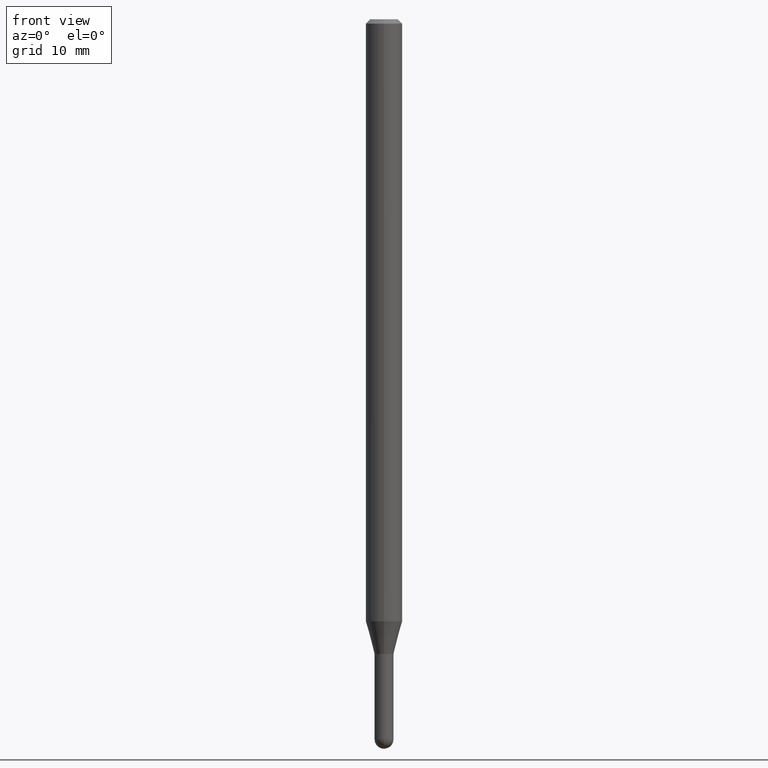
[diagram: clean part render]
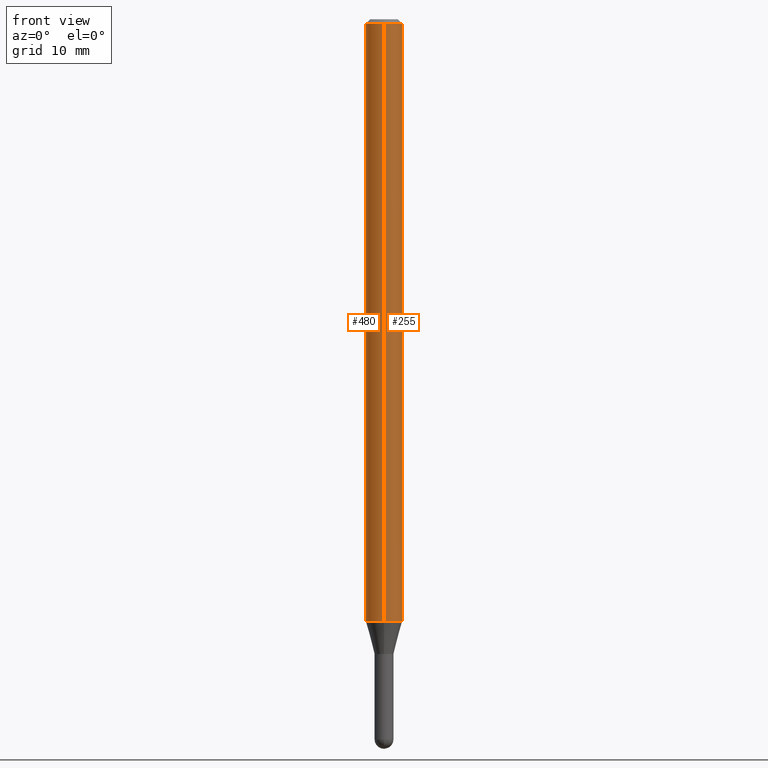
[diagram: same view with one multi-face feature highlighted, each face labeled with its STEP entity id]
A machine part, front view. The highlighted faces form ONE feature: a constant-radius fillet chain: 2 tangent blend faces with common blend radius 1.5875 mm. The faces share edges in the B-rep.
Their STEP definitions:
[1] entity #255 (Cylinder):
#9 = LINE ( 'NONE', #167, #502 ) ;
#13 = DIRECTION ( 'NONE',  ( -2.445428605324870207E-29, 3.491538908763138017E-15, 1.000000000000000000 ) ) ;
#27 = DIRECTION ( 'NONE',  ( -2.445428605324870207E-29, 3.491538908763138017E-15, 1.000000000000000000 ) ) ;
#48 = EDGE_CURVE ( 'NONE', #452, #416, #9, .T. ) ;
#50 = EDGE_LOOP ( 'NONE', ( #472, #399, #377, #481 ) ) ;
#65 = CARTESIAN_POINT ( 'NONE',  ( 5.045013302540962322E-29, -7.203179108436612378E-15, -2.063038475772938085 ) ) ;
#70 = CARTESIAN_POINT ( 'NONE',  ( -4.364351673553413302E-16, -0.06250000000000723033, -2.063038475772938085 ) ) ;
#77 = CARTESIAN_POINT ( 'NONE',  ( -4.364351673553912750E-16, -0.06250000000000005551, -0.01499999999999984852 ) ) ;
#98 = VECTOR ( 'NONE', #106, 39.37007874015748143 ) ;
#106 = DIRECTION ( 'NONE',  ( -2.445428605324870207E-29, 3.491538908763138017E-15, 1.000000000000000000 ) ) ;
#111 = LINE ( 'NONE', #195, #98 ) ;
#122 = AXIS2_PLACEMENT_3D ( 'NONE', #65, #27, #308 ) ;
#132 = CARTESIAN_POINT ( 'NONE',  ( 3.668142907987321705E-31, -5.237308363144729655E-17, -0.01500000000000006710 ) ) ;
#160 = CIRCLE ( 'NONE', #122, 0.06250000000000000000 ) ;
#167 = CARTESIAN_POINT ( 'NONE',  ( 4.440892098500625669E-16, 0.06250000000000000000, -2.182211817976961260E-16 ) ) ;
#173 = DIRECTION ( 'NONE',  ( -2.445428605324870207E-29, 3.491538908763138017E-15, 1.000000000000000000 ) ) ;
#175 = VERTEX_POINT ( 'NONE', #77 ) ;
#195 = CARTESIAN_POINT ( 'NONE',  ( -4.364351673553916201E-16, -0.06250000000000000000, 2.182211817976961260E-16 ) ) ;
#204 = EDGE_CURVE ( 'NONE', #298, #452, #160, .T. ) ;
#232 = CARTESIAN_POINT ( 'NONE',  ( 4.440892098501133991E-16, 0.06249999999999995143, -0.01500000000000028394 ) ) ;
#251 = EDGE_CURVE ( 'NONE', #175, #416, #427, .T. ) ;
#255 = ADVANCED_FACE ( 'NONE', ( #417 ), #354, .T. ) ;
#274 = AXIS2_PLACEMENT_3D ( 'NONE', #465, #420, #430 ) ;
#285 = DIRECTION ( 'NONE',  ( -6.982962677686265922E-15, -1.000000000000000000, 3.483106191921935554E-15 ) ) ;
#298 = VERTEX_POINT ( 'NONE', #70 ) ;
#308 = DIRECTION ( 'NONE',  ( -6.982962677686265922E-15, -1.000000000000000000, 4.370956789862821150E-15 ) ) ;
#317 = EDGE_CURVE ( 'NONE', #298, #175, #111, .T. ) ;
#343 = CARTESIAN_POINT ( 'NONE',  ( 4.440892098501128074E-16, 0.06249999999999276967, -2.063038475772938529 ) ) ;
#354 = CYLINDRICAL_SURFACE ( 'NONE', #274, 0.06250000000000000000 ) ;
#367 = AXIS2_PLACEMENT_3D ( 'NONE', #132, #13, #285 ) ;
#377 = ORIENTED_EDGE ( 'NONE', *, *, #251, .F. ) ;
#399 = ORIENTED_EDGE ( 'NONE', *, *, #48, .T. ) ;
#416 = VERTEX_POINT ( 'NONE', #232 ) ;
#417 = FACE_OUTER_BOUND ( 'NONE', #50, .T. ) ;
#420 = DIRECTION ( 'NONE',  ( -2.445428605324870207E-29, 3.491538908763138017E-15, 1.000000000000000000 ) ) ;
#427 = CIRCLE ( 'NONE', #367, 0.06250000000000000000 ) ;
#430 = DIRECTION ( 'NONE',  ( -6.982962677686265922E-15, -1.000000000000000000, 3.491538908763138017E-15 ) ) ;
#452 = VERTEX_POINT ( 'NONE', #343 ) ;
#465 = CARTESIAN_POINT ( 'NONE',  ( 0.000000000000000000, 0.000000000000000000, 0.000000000000000000 ) ) ;
#472 = ORIENTED_EDGE ( 'NONE', *, *, #204, .T. ) ;
#481 = ORIENTED_EDGE ( 'NONE', *, *, #317, .F. ) ;
#502 = VECTOR ( 'NONE', #173, 39.37007874015748143 ) ;
[2] entity #480 (Cylinder):
#9 = LINE ( 'NONE', #167, #502 ) ;
#19 = AXIS2_PLACEMENT_3D ( 'NONE', #36, #355, #155 ) ;
#36 = CARTESIAN_POINT ( 'NONE',  ( 5.045013302540962322E-29, -7.203179108436612378E-15, -2.063038475772938085 ) ) ;
#48 = EDGE_CURVE ( 'NONE', #452, #416, #9, .T. ) ;
#51 = FACE_OUTER_BOUND ( 'NONE', #215, .T. ) ;
#70 = CARTESIAN_POINT ( 'NONE',  ( -4.364351673553413302E-16, -0.06250000000000723033, -2.063038475772938085 ) ) ;
#77 = CARTESIAN_POINT ( 'NONE',  ( -4.364351673553912750E-16, -0.06250000000000005551, -0.01499999999999984852 ) ) ;
#90 = CARTESIAN_POINT ( 'NONE',  ( 0.000000000000000000, 0.000000000000000000, 0.000000000000000000 ) ) ;
#98 = VECTOR ( 'NONE', #106, 39.37007874015748143 ) ;
#102 = ORIENTED_EDGE ( 'NONE', *, *, #176, .T. ) ;
#104 = CARTESIAN_POINT ( 'NONE',  ( 3.668142907987321705E-31, -5.237308363144729655E-17, -0.01500000000000006710 ) ) ;
#106 = DIRECTION ( 'NONE',  ( -2.445428605324870207E-29, 3.491538908763138017E-15, 1.000000000000000000 ) ) ;
#111 = LINE ( 'NONE', #195, #98 ) ;
#116 = AXIS2_PLACEMENT_3D ( 'NONE', #90, #376, #138 ) ;
#136 = DIRECTION ( 'NONE',  ( -6.982962677686265922E-15, -1.000000000000000000, 3.483106191921935554E-15 ) ) ;
#138 = DIRECTION ( 'NONE',  ( -6.982962677686265922E-15, -1.000000000000000000, 3.491538908763138017E-15 ) ) ;
#155 = DIRECTION ( 'NONE',  ( -6.982962677686265922E-15, -1.000000000000000000, 4.370956789862821150E-15 ) ) ;
#167 = CARTESIAN_POINT ( 'NONE',  ( 4.440892098500625669E-16, 0.06250000000000000000, -2.182211817976961260E-16 ) ) ;
#173 = DIRECTION ( 'NONE',  ( -2.445428605324870207E-29, 3.491538908763138017E-15, 1.000000000000000000 ) ) ;
#175 = VERTEX_POINT ( 'NONE', #77 ) ;
#176 = EDGE_CURVE ( 'NONE', #452, #298, #405, .T. ) ;
#195 = CARTESIAN_POINT ( 'NONE',  ( -4.364351673553916201E-16, -0.06250000000000000000, 2.182211817976961260E-16 ) ) ;
#203 = ORIENTED_EDGE ( 'NONE', *, *, #496, .F. ) ;
#215 = EDGE_LOOP ( 'NONE', ( #368, #102, #248, #203 ) ) ;
#232 = CARTESIAN_POINT ( 'NONE',  ( 4.440892098501133991E-16, 0.06249999999999995143, -0.01500000000000028394 ) ) ;
#248 = ORIENTED_EDGE ( 'NONE', *, *, #317, .T. ) ;
#298 = VERTEX_POINT ( 'NONE', #70 ) ;
#317 = EDGE_CURVE ( 'NONE', #298, #175, #111, .T. ) ;
#343 = CARTESIAN_POINT ( 'NONE',  ( 4.440892098501128074E-16, 0.06249999999999276967, -2.063038475772938529 ) ) ;
#355 = DIRECTION ( 'NONE',  ( -2.445428605324870207E-29, 3.491538908763138017E-15, 1.000000000000000000 ) ) ;
#368 = ORIENTED_EDGE ( 'NONE', *, *, #48, .F. ) ;
#376 = DIRECTION ( 'NONE',  ( -2.445428605324870207E-29, 3.491538908763138017E-15, 1.000000000000000000 ) ) ;
#379 = CYLINDRICAL_SURFACE ( 'NONE', #116, 0.06250000000000000000 ) ;
#388 = AXIS2_PLACEMENT_3D ( 'NONE', #104, #489, #136 ) ;
#405 = CIRCLE ( 'NONE', #19, 0.06250000000000000000 ) ;
#416 = VERTEX_POINT ( 'NONE', #232 ) ;
#452 = VERTEX_POINT ( 'NONE', #343 ) ;
#480 = ADVANCED_FACE ( 'NONE', ( #51 ), #379, .T. ) ;
#489 = DIRECTION ( 'NONE',  ( -2.445428605324870207E-29, 3.491538908763138017E-15, 1.000000000000000000 ) ) ;
#496 = EDGE_CURVE ( 'NONE', #416, #175, #500, .T. ) ;
#500 = CIRCLE ( 'NONE', #388, 0.06250000000000000000 ) ;
#502 = VECTOR ( 'NONE', #173, 39.37007874015748143 ) ;